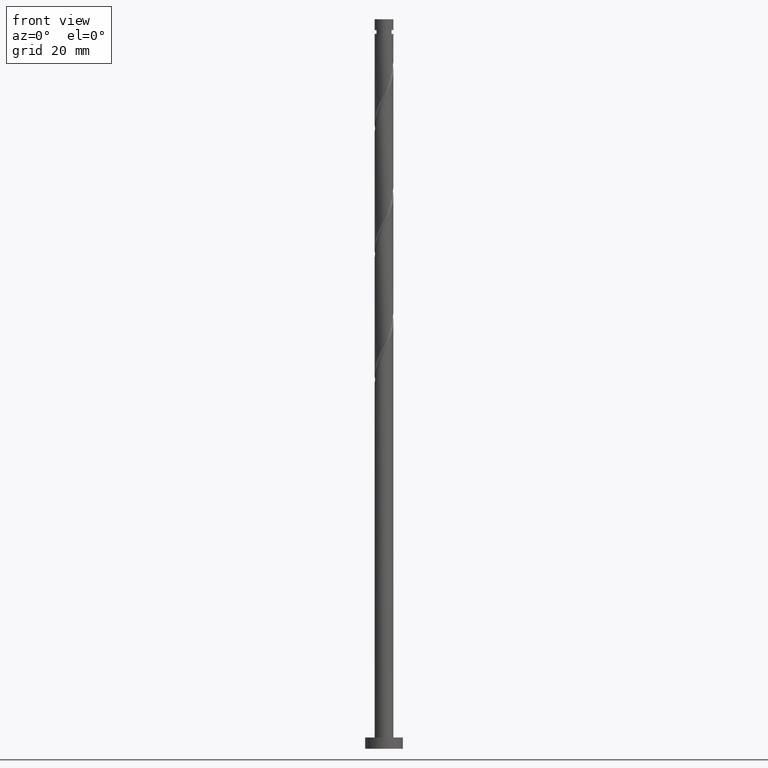
[diagram: clean part render]
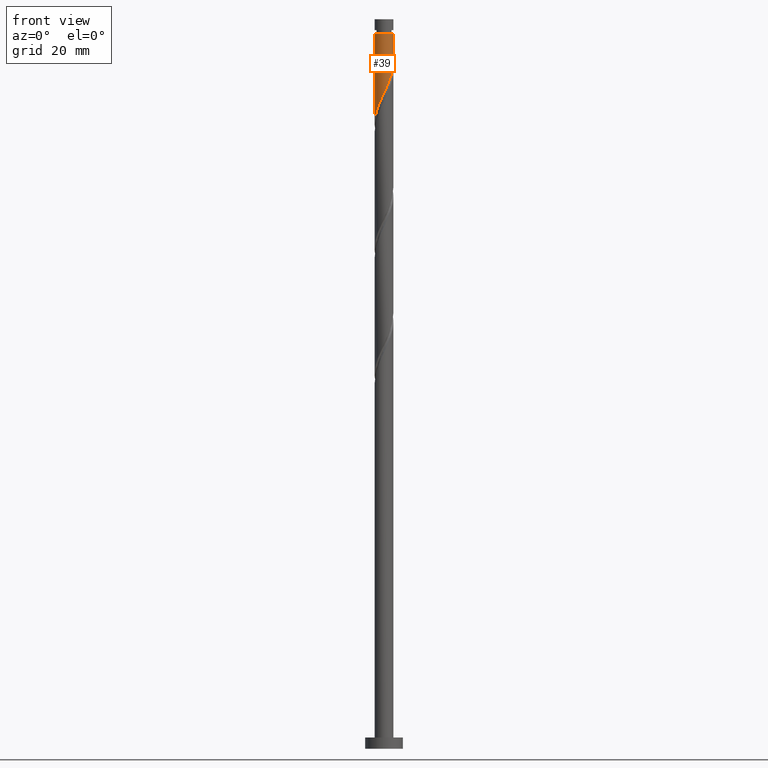
[diagram: same view with one face highlighted and labeled with its STEP entity id]
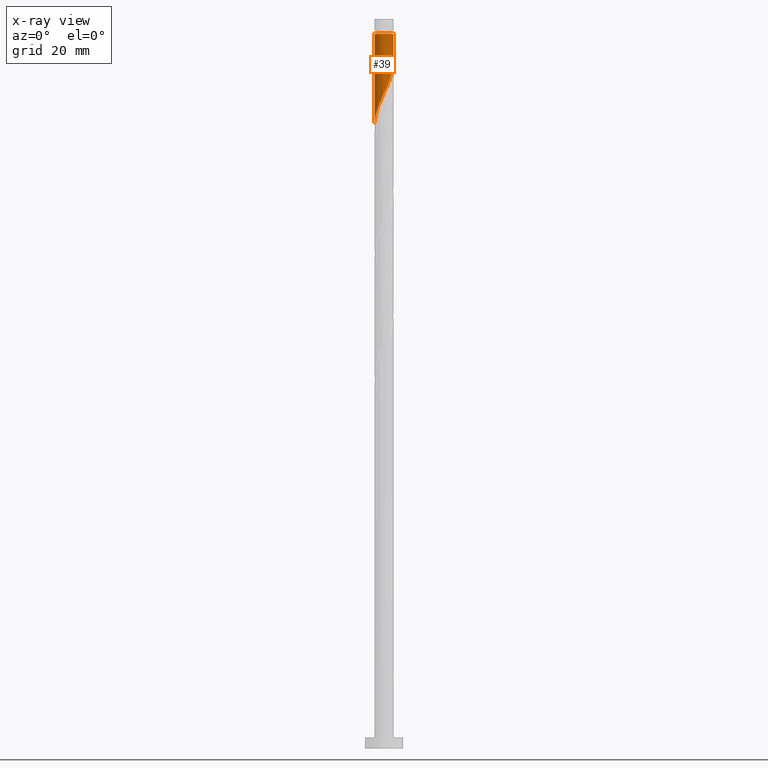
[diagram: x-ray of the same camera — body ghosted, the highlighted face saturated]
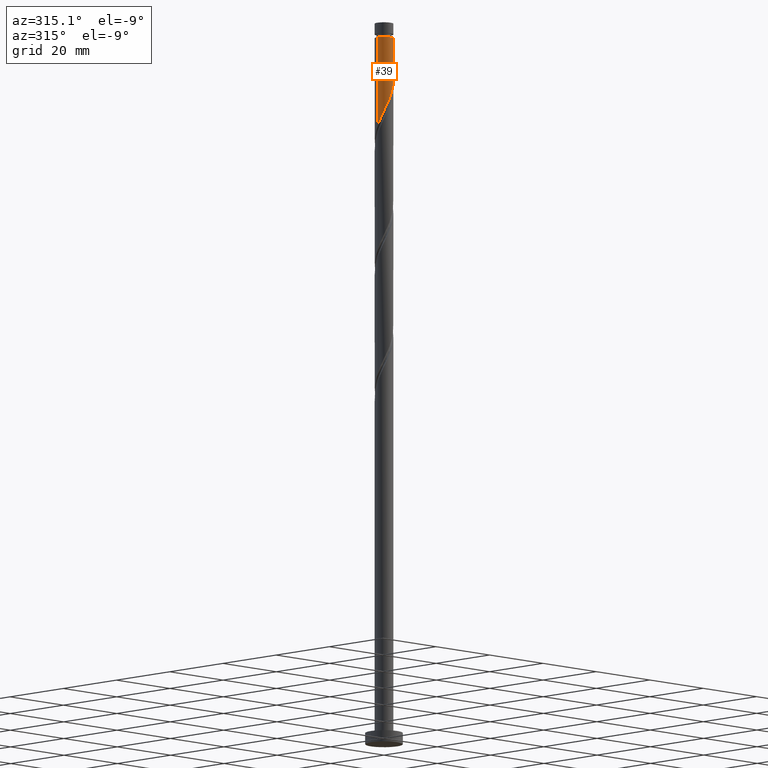
[diagram: same view with one face highlighted and labeled with its STEP entity id]
A machine part, front view. The second image highlights one B-rep face of the part: STEP entity #39.
The next image is the same camera in x-ray: the body ghosted, the highlighted face saturated — about 0% of this face is hidden behind the body in this view.
A second angle (auxiliary view) of the same face is appended — the face is thin or edge-on in the first view.
In plain terms, the highlighted cylindrical surface (edge-blend (fillet) strip) has radius 2.5 mm, axis along (-0, -0, -1).
Its self-contained STEP definition (entity closure, byte-faithful):
#1 = ORIENTED_EDGE ( 'NONE', *, *, #808, .T. ) ;
#39 = ADVANCED_FACE ( 'NONE', ( #62 ), #1437, .T. ) ;
#62 = FACE_OUTER_BOUND ( 'NONE', #1681, .T. ) ;
#66 = AXIS2_PLACEMENT_3D ( 'NONE', #769, #1152, #1406 ) ;
#91 = CARTESIAN_POINT ( 'NONE',  ( 2.237757425227745234, -1.114648691668405522, 179.8728887993752323 ) ) ;
#143 = VERTEX_POINT ( 'NONE', #1145 ) ;
#147 =( BOUNDED_CURVE ( )  B_SPLINE_CURVE ( 2, ( #933, #893, #617, #646, #91, #1722, #1179, #224, #767, #1567, #1577, #1426, #1149, #1044, #1457, #360, #246, #215, #1556, #758, #1292, #205, #1444, #1435, #789, #508, #1325 ),
 .UNSPECIFIED., .F., .T. ) 
 B_SPLINE_CURVE_WITH_KNOTS ( ( 3, 2, 2, 2, 2, 2, 2, 2, 2, 2, 2, 2, 2, 3 ),
 ( 0.3045317669814464057, 0.3125000000000000000, 0.3229166666666666852, 0.3333333333333333148, 0.3437500000000000000, 0.3541666666666666852, 0.3645833333333333148, 0.3750000000000000000, 0.3854166666666666852, 0.3958333333333333148, 0.4062500000000000000, 0.4166666666666666852, 0.4270833333333333148, 0.4295317669814462391 ),
 .UNSPECIFIED. ) 
 CURVE ( )  GEOMETRIC_REPRESENTATION_ITEM ( )  RATIONAL_B_SPLINE_CURVE ( ( 0.9062941362546486079, 0.9031415850403530232, 0.9090909090909282675, 0.9013135103398466352, 0.9090909090909282675, 0.9013135103398466352, 0.9090909090909282675, 0.9013135103398466352, 0.9090909090909282675, 0.9013135103398466352, 0.9090909090909282675, 0.9013135103398466352, 0.9090909090909282675, 0.9013135103398466352, 0.9090909090909282675, 0.9013135103398466352, 0.9090909090909282675, 0.9013135103398466352, 0.9090909090909282675, 0.9013135103398466352, 0.9090909090909282675, 0.9013135103398466352, 0.9090909090909282675, 0.9013135103398466352, 0.9090909090909282675, 0.9072628343904221015, 0.9062941362546487190 ) ) 
 REPRESENTATION_ITEM ( '' )  );
#150 = DIRECTION ( 'NONE',  ( -1.000000000000000000, 0.000000000000000000, 0.000000000000000000 ) ) ;
#205 = CARTESIAN_POINT ( 'NONE',  ( -2.265956240501270980, -1.106241244887206321, 168.0673332438196610 ) ) ;
#215 = CARTESIAN_POINT ( 'NONE',  ( -1.409255045694377539, -2.091011141037077969, 170.8451110215974609 ) ) ;
#224 = CARTESIAN_POINT ( 'NONE',  ( 1.655019618953359251, -1.902429351286329728, 177.7895554660419464 ) ) ;
#246 = CARTESIAN_POINT ( 'NONE',  ( -1.114648691668404634, -2.237757425227747010, 171.5395554660418895 ) ) ;
#322 = CARTESIAN_POINT ( 'NONE',  ( 2.500000000000000000, 3.061616997868383141E-16, 193.4900000000000091 ) ) ;
#360 = CARTESIAN_POINT ( 'NONE',  ( -0.8200423376424320621, -2.384503709418415163, 172.2339999104863466 ) ) ;
#408 = VECTOR ( 'NONE', #1256, 1000.000000000000000 ) ;
#508 = CARTESIAN_POINT ( 'NONE',  ( -2.500000000000000444, -0.07685487914418333288, 165.8218413648356773 ) ) ;
#549 = ORIENTED_EDGE ( 'NONE', *, *, #888, .T. ) ;
#576 = CARTESIAN_POINT ( 'NONE',  ( -2.499999999999988454, 0.000000000000000000, 189.5951110215974609 ) ) ;
#617 = CARTESIAN_POINT ( 'NONE',  ( 2.449999999999999734, -0.4974937185533115924, 181.2617776882641181 ) ) ;
#631 = ORIENTED_EDGE ( 'NONE', *, *, #1101, .F. ) ;
#646 = CARTESIAN_POINT ( 'NONE',  ( 2.384503709418414275, -0.8200423376424329502, 180.5673332438197178 ) ) ;
#717 = LINE ( 'NONE', #1114, #1122 ) ;
#758 = CARTESIAN_POINT ( 'NONE',  ( -1.902429351286329728, -1.655019618953359473, 169.4562221327085751 ) ) ;
#767 = CARTESIAN_POINT ( 'NONE',  ( 1.380630431920282231, -2.084192795893800021, 177.0951110215974325 ) ) ;
#769 = CARTESIAN_POINT ( 'NONE',  ( 0.000000000000000000, 0.000000000000000000, 193.4900000000000091 ) ) ;
#789 = CARTESIAN_POINT ( 'NONE',  ( -2.495279123588686865, -0.1535646293339473223, 165.9839999104863466 ) ) ;
#808 = EDGE_CURVE ( 'NONE', #1674, #1597, #954, .T. ) ;
#817 = DIRECTION ( 'NONE',  ( -0.000000000000000000, -0.000000000000000000, -1.000000000000000000 ) ) ;
#888 = EDGE_CURVE ( 'NONE', #1597, #143, #717, .T. ) ;
#893 = CARTESIAN_POINT ( 'NONE',  ( 2.500000000000000000, -0.2512594538148089640, 181.7919179742848996 ) ) ;
#933 = CARTESIAN_POINT ( 'NONE',  ( 2.500000000000000444, 2.990756888724003558E-16, 182.3253443434741996 ) ) ;
#954 = CIRCLE ( 'NONE', #1451, 2.499999999999988454 ) ;
#971 = DIRECTION ( 'NONE',  ( -0.000000000000000000, -0.000000000000000000, -1.000000000000000000 ) ) ;
#979 = CARTESIAN_POINT ( 'NONE',  ( 2.499999999999988454, 3.061616997868375253E-16, 189.5951110215974609 ) ) ;
#1010 = LINE ( 'NONE', #322, #408 ) ;
#1016 = VERTEX_POINT ( 'NONE', #1521 ) ;
#1044 = CARTESIAN_POINT ( 'NONE',  ( -0.1749450994641920942, -2.515496290581585193, 173.6228887993752892 ) ) ;
#1101 = EDGE_CURVE ( 'NONE', #1674, #1016, #1010, .T. ) ;
#1114 = CARTESIAN_POINT ( 'NONE',  ( -2.500000000000000000, 0.000000000000000000, 193.4900000000000091 ) ) ;
#1122 = VECTOR ( 'NONE', #971, 1000.000000000000000 ) ;
#1145 = CARTESIAN_POINT ( 'NONE',  ( -2.500000000000000444, -9.645190966134910391E-16, 165.6586776768075424 ) ) ;
#1149 = CARTESIAN_POINT ( 'NONE',  ( 0.1535646293339464619, -2.495279123588686865, 174.3173332438196894 ) ) ;
#1152 = DIRECTION ( 'NONE',  ( -0.000000000000000000, -0.000000000000000000, -1.000000000000000000 ) ) ;
#1179 = CARTESIAN_POINT ( 'NONE',  ( 1.873015379995218721, -1.655842198490353967, 178.4839999104863182 ) ) ;
#1187 = EDGE_CURVE ( 'NONE', #1016, #143, #147, .T. ) ;
#1256 = DIRECTION ( 'NONE',  ( -0.000000000000000000, -0.000000000000000000, -1.000000000000000000 ) ) ;
#1292 = CARTESIAN_POINT ( 'NONE',  ( -2.084192795893799133, -1.380630431920282675, 168.7617776882640896 ) ) ;
#1325 = CARTESIAN_POINT ( 'NONE',  ( -2.500000000000000444, -9.645190966134910391E-16, 165.6586776768075708 ) ) ;
#1406 = DIRECTION ( 'NONE',  ( -1.000000000000000000, 0.000000000000000000, 0.000000000000000000 ) ) ;
#1426 = CARTESIAN_POINT ( 'NONE',  ( 0.4820743581320852122, -2.475061956595791646, 175.0117776882641465 ) ) ;
#1435 = CARTESIAN_POINT ( 'NONE',  ( -2.475061956595791202, -0.4820743581320859339, 166.6784443549308321 ) ) ;
#1437 = CYLINDRICAL_SURFACE ( 'NONE', #66, 2.500000000000000000 ) ;
#1444 = CARTESIAN_POINT ( 'NONE',  ( -2.370509098548530424, -0.7941578015096462106, 167.3728887993752608 ) ) ;
#1451 = AXIS2_PLACEMENT_3D ( 'NONE', #1481, #817, #150 ) ;
#1457 = CARTESIAN_POINT ( 'NONE',  ( -0.4974937185533114814, -2.449999999999999734, 172.9284443549308037 ) ) ;
#1481 = CARTESIAN_POINT ( 'NONE',  ( 0.000000000000000000, 0.000000000000000000, 189.5951110215974609 ) ) ;
#1521 = CARTESIAN_POINT ( 'NONE',  ( 2.500000000000000444, 2.990756888724003558E-16, 182.3253443434741996 ) ) ;
#1556 = CARTESIAN_POINT ( 'NONE',  ( -1.655842198490353967, -1.873015379995218721, 170.1506665771530322 ) ) ;
#1567 = CARTESIAN_POINT ( 'NONE',  ( 1.106241244887206321, -2.265956240501270980, 176.4006665771530038 ) ) ;
#1577 = CARTESIAN_POINT ( 'NONE',  ( 0.7941578015096460996, -2.370509098548530869, 175.7062221327085751 ) ) ;
#1597 = VERTEX_POINT ( 'NONE', #576 ) ;
#1627 = ORIENTED_EDGE ( 'NONE', *, *, #1187, .F. ) ;
#1674 = VERTEX_POINT ( 'NONE', #979 ) ;
#1681 = EDGE_LOOP ( 'NONE', ( #631, #1, #549, #1627 ) ) ;
#1722 = CARTESIAN_POINT ( 'NONE',  ( 2.091011141037077081, -1.409255045694378206, 179.1784443549308037 ) ) ;